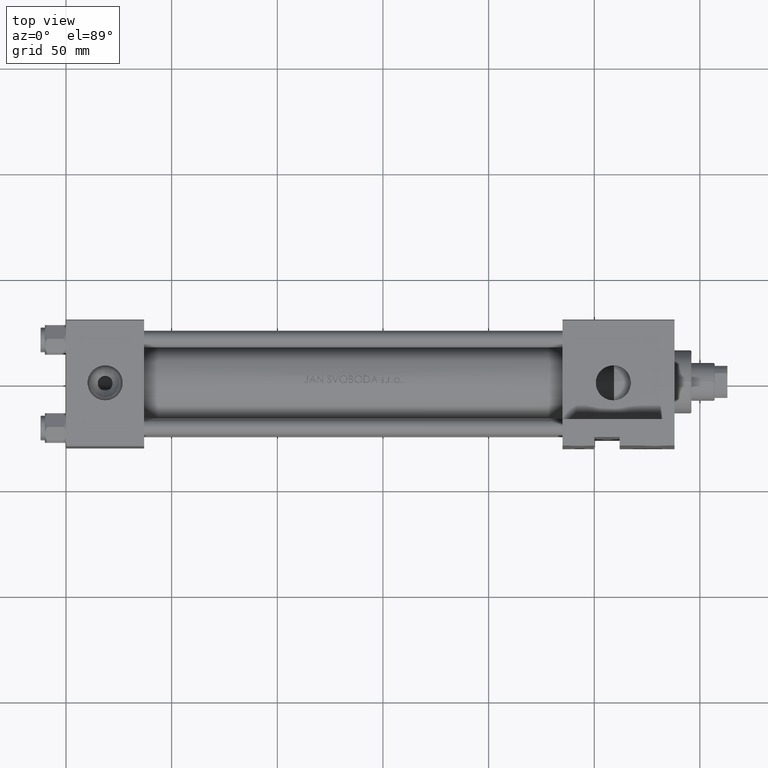
[diagram: clean part render]
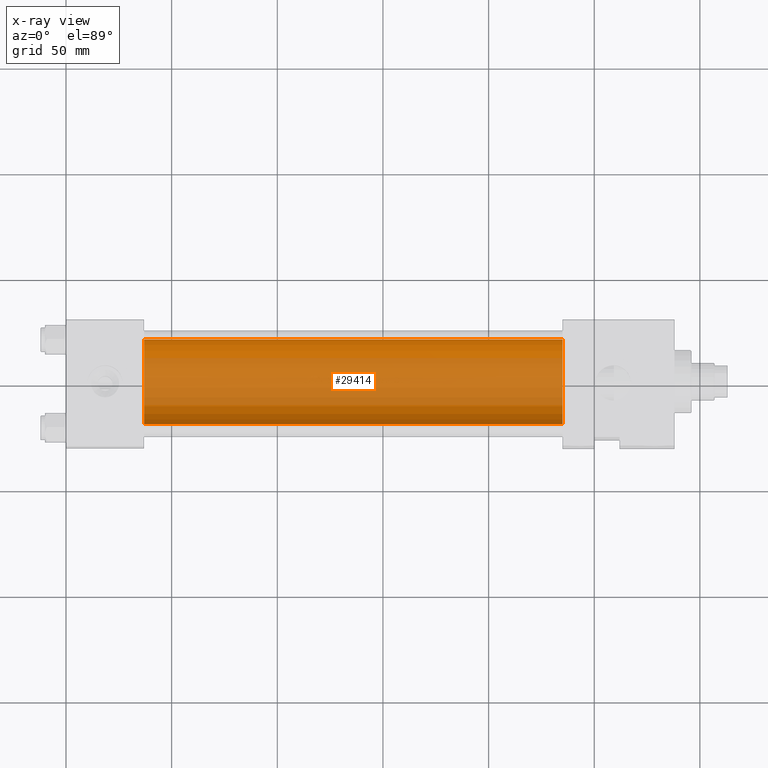
[diagram: x-ray — body ghosted, one internal face saturated and labeled with its STEP entity id]
A machine part, top view, then the same camera in x-ray: the body is ghosted and one INTERNAL B-rep face — a face not visible from any outside direction — is saturated and labeled: STEP entity #29414.
In plain terms, the highlighted cylindrical surface (partial cylindrical patch) has radius 20 mm, axis along (-1, -0, 0).
Its self-contained STEP definition (entity closure, byte-faithful):
#829 = AXIS2_PLACEMENT_3D ( 'NONE', #8033, #38366, #27756 ) ;
#3548 = CARTESIAN_POINT ( 'NONE',  ( 235.0000000000000284, -1.224646799147354686E-16, 21.00000000000000000 ) ) ;
#4346 = AXIS2_PLACEMENT_3D ( 'NONE', #10282, #47736, #13983 ) ;
#4522 = VECTOR ( 'NONE', #8395, 1000.000000000000000 ) ;
#4633 = EDGE_CURVE ( 'NONE', #5793, #25836, #47823, .T. ) ;
#5793 = VERTEX_POINT ( 'NONE', #29304 ) ;
#6936 = CARTESIAN_POINT ( 'NONE',  ( 235.0000000000000284, -1.224646799147354686E-16, 1.000000000000000888 ) ) ;
#8033 = CARTESIAN_POINT ( 'NONE',  ( 235.0000000000000284, -1.224646799147354686E-16, 1.000000000000000888 ) ) ;
#8395 = DIRECTION ( 'NONE',  ( -1.000000000000000000, -0.000000000000000000, -0.000000000000000000 ) ) ;
#8526 = FACE_OUTER_BOUND ( 'NONE', #37106, .T. ) ;
#10282 = CARTESIAN_POINT ( 'NONE',  ( 37.00000000000000000, -1.224646799147354686E-16, 1.000000000000000888 ) ) ;
#12462 = CYLINDRICAL_SURFACE ( 'NONE', #829, 20.00000000000000000 ) ;
#12817 = CARTESIAN_POINT ( 'NONE',  ( 235.0000000000000284, -1.224646799147354686E-16, 21.00000000000000000 ) ) ;
#13199 = CIRCLE ( 'NONE', #45463, 20.00000000000000000 ) ;
#13983 = DIRECTION ( 'NONE',  ( 0.000000000000000000, 0.000000000000000000, -1.000000000000000000 ) ) ;
#17280 = DIRECTION ( 'NONE',  ( -1.000000000000000000, -0.000000000000000000, -0.000000000000000000 ) ) ;
#17790 = EDGE_CURVE ( 'NONE', #25836, #18305, #23257, .T. ) ;
#18305 = VERTEX_POINT ( 'NONE', #19556 ) ;
#19556 = CARTESIAN_POINT ( 'NONE',  ( 37.00000000000000000, -1.224646799147354686E-16, 21.00000000000000000 ) ) ;
#23257 = CIRCLE ( 'NONE', #4346, 20.00000000000000000 ) ;
#23395 = CARTESIAN_POINT ( 'NONE',  ( 37.00000000000000000, 2.326828918379970970E-15, -19.00000000000000000 ) ) ;
#23403 = EDGE_CURVE ( 'NONE', #24378, #18305, #35027, .T. ) ;
#24378 = VERTEX_POINT ( 'NONE', #3548 ) ;
#25836 = VERTEX_POINT ( 'NONE', #23395 ) ;
#25845 = ORIENTED_EDGE ( 'NONE', *, *, #23403, .T. ) ;
#27756 = DIRECTION ( 'NONE',  ( 0.000000000000000000, 0.000000000000000000, 1.000000000000000000 ) ) ;
#28869 = CARTESIAN_POINT ( 'NONE',  ( 235.0000000000000284, 2.326828918379970970E-15, -19.00000000000000000 ) ) ;
#29304 = CARTESIAN_POINT ( 'NONE',  ( 235.0000000000000284, 2.326828918379970970E-15, -19.00000000000000000 ) ) ;
#29414 = ADVANCED_FACE ( 'NONE', ( #8526 ), #12462, .F. ) ;
#30170 = VECTOR ( 'NONE', #17280, 1000.000000000000000 ) ;
#33161 = ORIENTED_EDGE ( 'NONE', *, *, #41644, .T. ) ;
#33324 = DIRECTION ( 'NONE',  ( 1.000000000000000000, 0.000000000000000000, 0.000000000000000000 ) ) ;
#35027 = LINE ( 'NONE', #12817, #4522 ) ;
#37106 = EDGE_LOOP ( 'NONE', ( #48360, #33161, #25845, #45895 ) ) ;
#38366 = DIRECTION ( 'NONE',  ( -1.000000000000000000, -0.000000000000000000, -0.000000000000000000 ) ) ;
#41644 = EDGE_CURVE ( 'NONE', #5793, #24378, #13199, .T. ) ;
#44889 = DIRECTION ( 'NONE',  ( 0.000000000000000000, 0.000000000000000000, -1.000000000000000000 ) ) ;
#45463 = AXIS2_PLACEMENT_3D ( 'NONE', #6936, #33324, #44889 ) ;
#45895 = ORIENTED_EDGE ( 'NONE', *, *, #17790, .F. ) ;
#47736 = DIRECTION ( 'NONE',  ( 1.000000000000000000, 0.000000000000000000, 0.000000000000000000 ) ) ;
#47823 = LINE ( 'NONE', #28869, #30170 ) ;
#48360 = ORIENTED_EDGE ( 'NONE', *, *, #4633, .F. ) ;